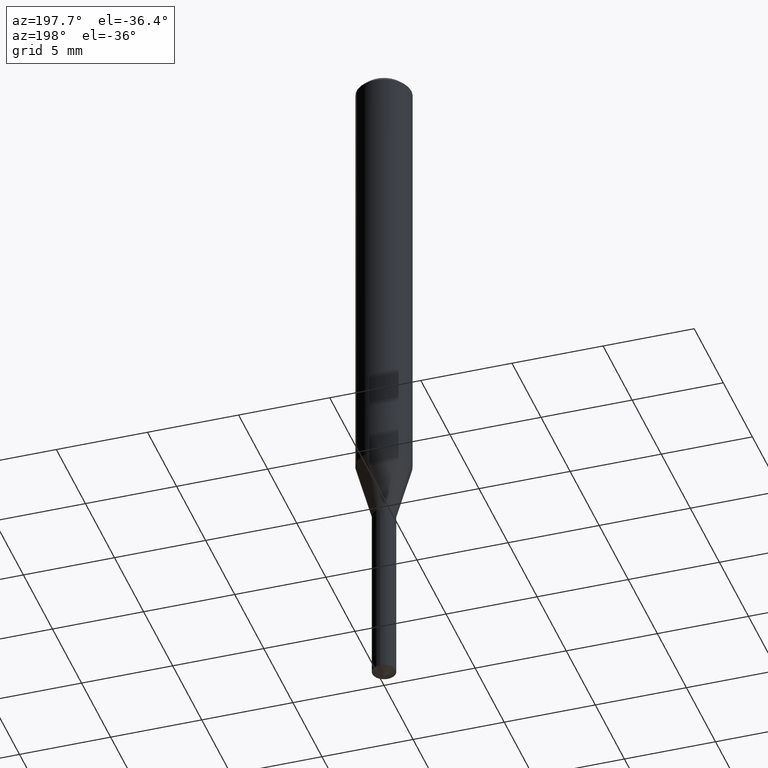
[diagram: clean part render]
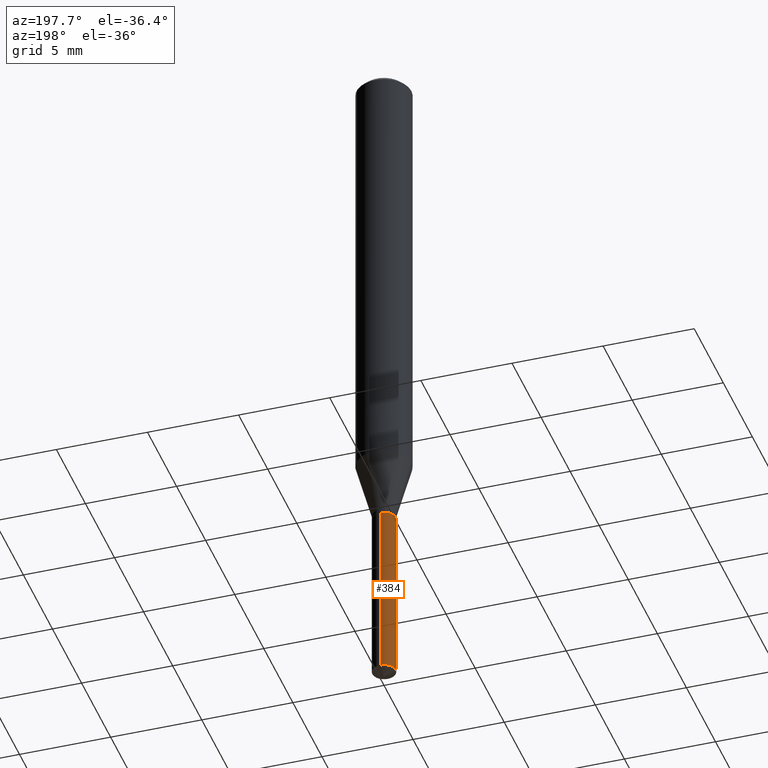
[diagram: same view with one face highlighted and labeled with its STEP entity id]
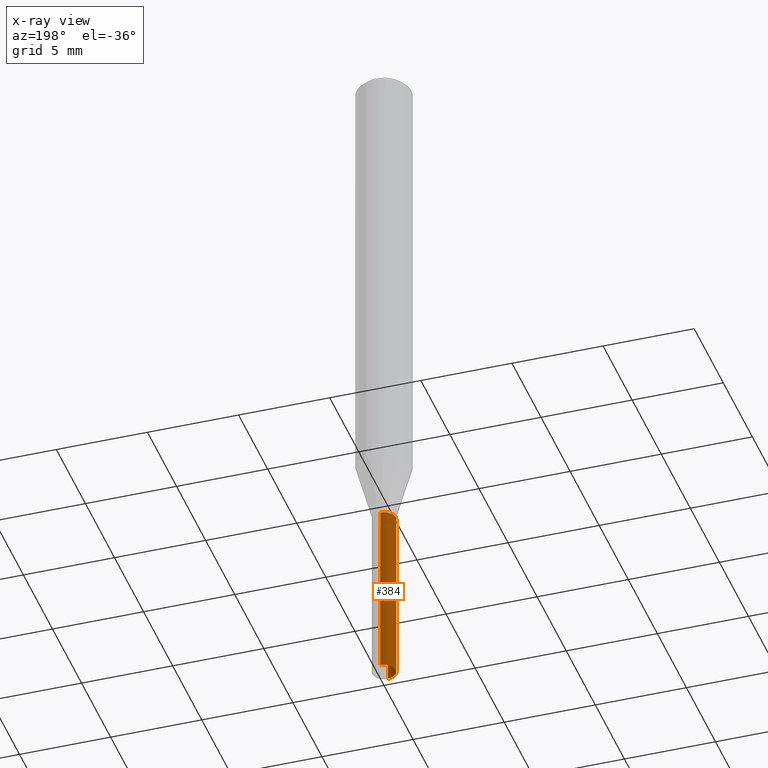
[diagram: x-ray of the same camera — body ghosted, the highlighted face saturated]
A machine part, auxiliary view. The second image highlights one B-rep face of the part: STEP entity #384.
The next image is the same camera in x-ray: the body ghosted, the highlighted face saturated — about 0% of this face is hidden behind the body in this view.
In plain terms, the highlighted cylindrical surface (edge-blend (fillet) strip) has radius 0.6401 mm, axis along (-0, 0, 1).
Its self-contained STEP definition (entity closure, byte-faithful):
#1 = DIRECTION ( 'NONE',  ( -2.445470214571802116E-29, 3.491479321953280158E-15, 1.000000000000000000 ) ) ;
#2 = AXIS2_PLACEMENT_3D ( 'NONE', #137, #476, #321 ) ;
#5 = EDGE_CURVE ( 'NONE', #42, #370, #37, .T. ) ;
#16 = CARTESIAN_POINT ( 'NONE',  ( -1.759706594776671726E-16, -0.02520000000000382004, -1.094499999999999806 ) ) ;
#20 = VECTOR ( 'NONE', #299, 39.37007874015748143 ) ;
#27 = EDGE_CURVE ( 'NONE', #167, #370, #353, .T. ) ;
#37 = CIRCLE ( 'NONE', #471, 0.02520000000000000018 ) ;
#42 = VERTEX_POINT ( 'NONE', #259 ) ;
#73 = FACE_OUTER_BOUND ( 'NONE', #460, .T. ) ;
#90 = ORIENTED_EDGE ( 'NONE', *, *, #5, .F. ) ;
#94 = EDGE_CURVE ( 'NONE', #488, #42, #397, .T. ) ;
#112 = ORIENTED_EDGE ( 'NONE', *, *, #27, .T. ) ;
#116 = DIRECTION ( 'NONE',  ( -6.982962677686266711E-15, -1.000000000000000000, 5.420333320762426626E-15 ) ) ;
#133 = EDGE_CURVE ( 'NONE', #488, #167, #358, .T. ) ;
#137 = CARTESIAN_POINT ( 'NONE',  ( 3.629929841022778800E-29, -5.182576211698120707E-15, -1.484349047014493994 ) ) ;
#157 = ORIENTED_EDGE ( 'NONE', *, *, #133, .T. ) ;
#167 = VERTEX_POINT ( 'NONE', #292 ) ;
#181 = CARTESIAN_POINT ( 'NONE',  ( 1.790567694115719708E-16, 0.02519999999999618032, -1.094500000000000028 ) ) ;
#243 = DIRECTION ( 'NONE',  ( -2.445470214571802116E-29, 3.491479321953280158E-15, 1.000000000000000000 ) ) ;
#248 = VECTOR ( 'NONE', #468, 39.37007874015748143 ) ;
#259 = CARTESIAN_POINT ( 'NONE',  ( 1.790567694115816097E-16, 0.02519999999999618032, -1.094500000000000028 ) ) ;
#292 = CARTESIAN_POINT ( 'NONE',  ( -1.759706594776576077E-16, -0.02520000000000518700, -1.484349047014493994 ) ) ;
#299 = DIRECTION ( 'NONE',  ( -2.445470214571802396E-29, 3.491479321953280158E-15, 1.000000000000000000 ) ) ;
#303 = CARTESIAN_POINT ( 'NONE',  ( -1.759706594776671726E-16, -0.02520000000000382004, -1.094499999999999806 ) ) ;
#321 = DIRECTION ( 'NONE',  ( -6.982962677686266711E-15, -1.000000000000000000, 0.000000000000000000 ) ) ;
#336 = CARTESIAN_POINT ( 'NONE',  ( 2.676565608369631794E-29, -3.821426325363822773E-15, -1.094499999999999806 ) ) ;
#347 = CARTESIAN_POINT ( 'NONE',  ( 2.676565608369631794E-29, -3.821426325363822773E-15, -1.094499999999999806 ) ) ;
#351 = AXIS2_PLACEMENT_3D ( 'NONE', #336, #1, #116 ) ;
#353 = LINE ( 'NONE', #16, #248 ) ;
#358 = CIRCLE ( 'NONE', #2, 0.02520000000000000018 ) ;
#370 = VERTEX_POINT ( 'NONE', #303 ) ;
#377 = CYLINDRICAL_SURFACE ( 'NONE', #351, 0.02520000000000000018 ) ;
#384 = ADVANCED_FACE ( 'NONE', ( #73 ), #377, .T. ) ;
#397 = LINE ( 'NONE', #181, #20 ) ;
#429 = DIRECTION ( 'NONE',  ( -6.982962677686266711E-15, -1.000000000000000000, 5.420333320762426626E-15 ) ) ;
#431 = CARTESIAN_POINT ( 'NONE',  ( 1.790567694115815357E-16, 0.02519999999999481335, -1.484349047014493994 ) ) ;
#453 = ORIENTED_EDGE ( 'NONE', *, *, #94, .F. ) ;
#460 = EDGE_LOOP ( 'NONE', ( #453, #157, #112, #90 ) ) ;
#468 = DIRECTION ( 'NONE',  ( -2.445470214571802396E-29, 3.491479321953280158E-15, 1.000000000000000000 ) ) ;
#471 = AXIS2_PLACEMENT_3D ( 'NONE', #347, #243, #429 ) ;
#476 = DIRECTION ( 'NONE',  ( -2.445470214571802116E-29, 3.491479321953280158E-15, 1.000000000000000000 ) ) ;
#488 = VERTEX_POINT ( 'NONE', #431 ) ;